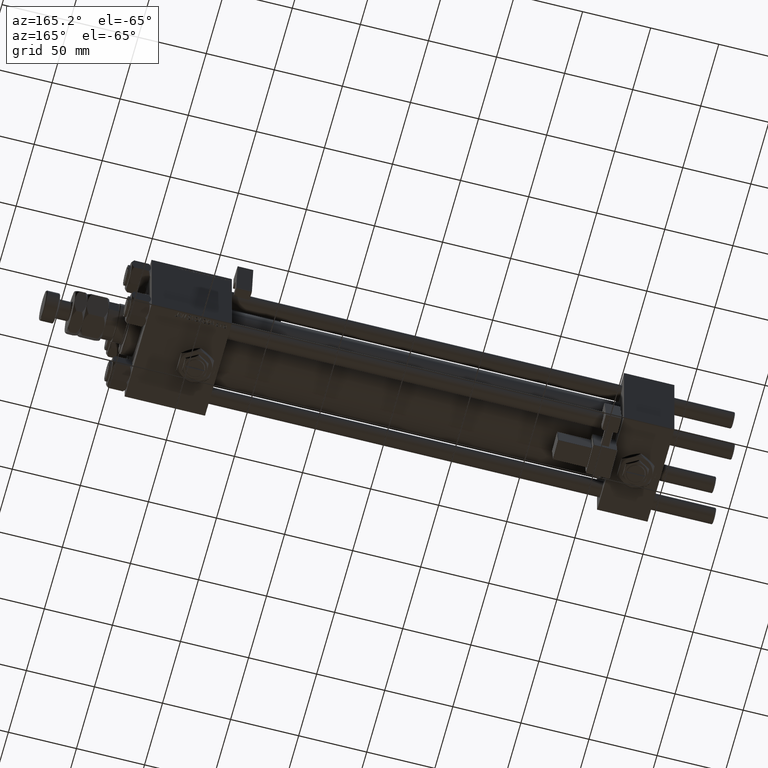
[diagram: clean part render]
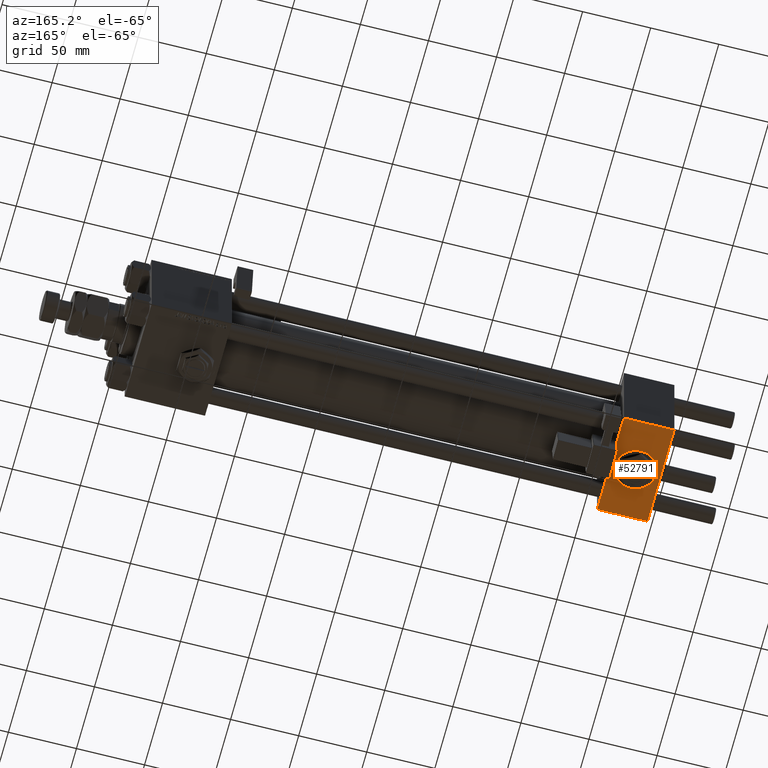
[diagram: same view with one face highlighted and labeled with its STEP entity id]
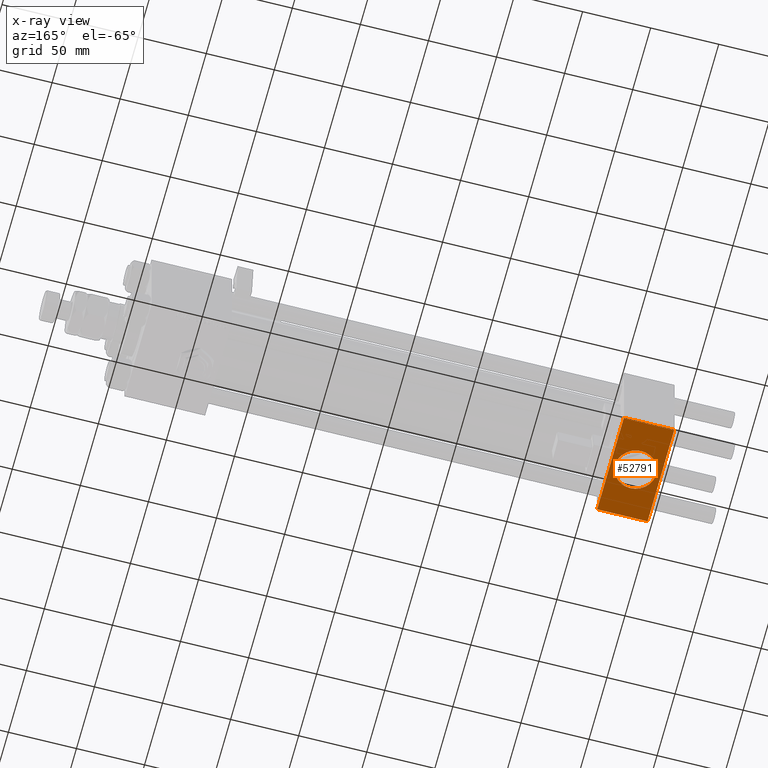
[diagram: x-ray of the same camera — body ghosted, the highlighted face saturated]
A machine part, auxiliary view. The second image highlights one B-rep face of the part: STEP entity #52791.
The next image is the same camera in x-ray: the body ghosted, the highlighted face saturated — about 0% of this face is hidden behind the body in this view.
In plain terms, the highlighted planar face has unit normal (0, 0, -1).
Its self-contained STEP definition (entity closure, byte-faithful):
#732 = CARTESIAN_POINT ( 'NONE',  ( 0.000000000000000000, -37.00000000000002132, -37.50000000000000711 ) ) ;
#1126 = VECTOR ( 'NONE', #28561, 1000.000000000000000 ) ;
#1392 = EDGE_CURVE ( 'NONE', #19165, #45296, #19531, .T. ) ;
#2258 = AXIS2_PLACEMENT_3D ( 'NONE', #37434, #28725, #45869 ) ;
#2658 = LINE ( 'NONE', #36444, #1126 ) ;
#3083 = ORIENTED_EDGE ( 'NONE', *, *, #51677, .F. ) ;
#5699 = ORIENTED_EDGE ( 'NONE', *, *, #7852, .F. ) ;
#6108 = CARTESIAN_POINT ( 'NONE',  ( 37.00000000000000000, 36.99999999999997868, -37.50000000000000000 ) ) ;
#7852 = EDGE_CURVE ( 'NONE', #19884, #35989, #18164, .T. ) ;
#8015 = LINE ( 'NONE', #54999, #21251 ) ;
#8222 = CARTESIAN_POINT ( 'NONE',  ( 18.50000000000000000, 15.00000000000000178, -37.50000000000000711 ) ) ;
#11276 = VECTOR ( 'NONE', #14439, 1000.000000000000000 ) ;
#12283 = CARTESIAN_POINT ( 'NONE',  ( 18.50000000000000355, -14.99999999999999822, -37.50000000000000711 ) ) ;
#14439 = DIRECTION ( 'NONE',  ( 0.000000000000000000, -1.000000000000000000, -9.251858538542972814E-17 ) ) ;
#15949 = CARTESIAN_POINT ( 'NONE',  ( 18.50000000000000000, 1.999870792976790439E-15, -37.50000000000000711 ) ) ;
#18164 = CIRCLE ( 'NONE', #32519, 15.00000000000000000 ) ;
#19165 = VERTEX_POINT ( 'NONE', #54856 ) ;
#19531 = LINE ( 'NONE', #54381, #22384 ) ;
#19884 = VERTEX_POINT ( 'NONE', #8222 ) ;
#20020 = FACE_BOUND ( 'NONE', #27705, .T. ) ;
#20974 = DIRECTION ( 'NONE',  ( 0.000000000000000000, -1.000000000000000000, -9.251858538542972814E-17 ) ) ;
#21251 = VECTOR ( 'NONE', #20974, 1000.000000000000000 ) ;
#22384 = VECTOR ( 'NONE', #45650, 1000.000000000000000 ) ;
#22783 = DIRECTION ( 'NONE',  ( 0.000000000000000000, 1.000000000000000000, 0.000000000000000000 ) ) ;
#23155 = CARTESIAN_POINT ( 'NONE',  ( 37.00000000000000000, 37.49999999999999289, -37.50000000000000000 ) ) ;
#23598 = EDGE_CURVE ( 'NONE', #35989, #19884, #54189, .T. ) ;
#25127 = EDGE_CURVE ( 'NONE', #42585, #35930, #2658, .T. ) ;
#26712 = DIRECTION ( 'NONE',  ( 0.000000000000000000, -1.734723475976806848E-16, -1.000000000000000000 ) ) ;
#26798 = ORIENTED_EDGE ( 'NONE', *, *, #23598, .F. ) ;
#27705 = EDGE_LOOP ( 'NONE', ( #5699, #26798 ) ) ;
#28561 = DIRECTION ( 'NONE',  ( 1.000000000000000000, 0.000000000000000000, 0.000000000000000000 ) ) ;
#28725 = DIRECTION ( 'NONE',  ( 0.000000000000000000, 9.251858538542972814E-17, -1.000000000000000000 ) ) ;
#30273 = EDGE_LOOP ( 'NONE', ( #3083, #38436, #51589, #44124 ) ) ;
#31205 = CARTESIAN_POINT ( 'NONE',  ( 18.50000000000000000, 1.999870792976790439E-15, -37.50000000000000711 ) ) ;
#32519 = AXIS2_PLACEMENT_3D ( 'NONE', #31205, #26712, #22783 ) ;
#33788 = FACE_OUTER_BOUND ( 'NONE', #30273, .T. ) ;
#35786 = CARTESIAN_POINT ( 'NONE',  ( 0.000000000000000000, 36.99999999999997868, -37.50000000000000000 ) ) ;
#35930 = VERTEX_POINT ( 'NONE', #6108 ) ;
#35989 = VERTEX_POINT ( 'NONE', #12283 ) ;
#36064 = LINE ( 'NONE', #23155, #11276 ) ;
#36444 = CARTESIAN_POINT ( 'NONE',  ( 37.00000000000000000, 36.99999999999997868, -37.50000000000000000 ) ) ;
#37434 = CARTESIAN_POINT ( 'NONE',  ( 37.00000000000000000, 37.49999999999999289, -37.50000000000000000 ) ) ;
#38436 = ORIENTED_EDGE ( 'NONE', *, *, #25127, .T. ) ;
#38808 = AXIS2_PLACEMENT_3D ( 'NONE', #15949, #46000, #41789 ) ;
#41789 = DIRECTION ( 'NONE',  ( 0.000000000000000000, 1.000000000000000000, 0.000000000000000000 ) ) ;
#42585 = VERTEX_POINT ( 'NONE', #35786 ) ;
#44124 = ORIENTED_EDGE ( 'NONE', *, *, #1392, .T. ) ;
#45296 = VERTEX_POINT ( 'NONE', #732 ) ;
#45323 = PLANE ( 'NONE',  #2258 ) ;
#45650 = DIRECTION ( 'NONE',  ( -1.000000000000000000, 0.000000000000000000, 0.000000000000000000 ) ) ;
#45869 = DIRECTION ( 'NONE',  ( 0.000000000000000000, 1.000000000000000000, 9.251858538542972814E-17 ) ) ;
#46000 = DIRECTION ( 'NONE',  ( 0.000000000000000000, -1.734723475976806848E-16, -1.000000000000000000 ) ) ;
#51589 = ORIENTED_EDGE ( 'NONE', *, *, #52555, .T. ) ;
#51677 = EDGE_CURVE ( 'NONE', #42585, #45296, #8015, .T. ) ;
#52555 = EDGE_CURVE ( 'NONE', #35930, #19165, #36064, .T. ) ;
#52791 = ADVANCED_FACE ( 'NONE', ( #20020, #33788 ), #45323, .T. ) ;
#54189 = CIRCLE ( 'NONE', #38808, 15.00000000000000000 ) ;
#54381 = CARTESIAN_POINT ( 'NONE',  ( 0.000000000000000000, -37.00000000000002132, -37.50000000000000711 ) ) ;
#54856 = CARTESIAN_POINT ( 'NONE',  ( 37.00000000000000000, -37.00000000000002132, -37.50000000000000711 ) ) ;
#54999 = CARTESIAN_POINT ( 'NONE',  ( 0.000000000000000000, 37.49999999999999289, -37.50000000000000000 ) ) ;